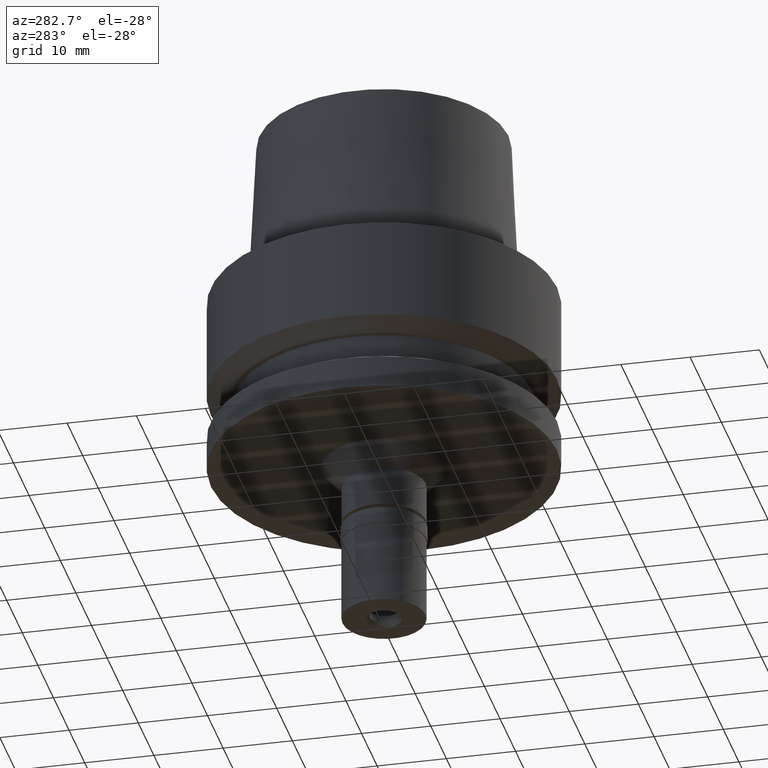
[diagram: clean part render]
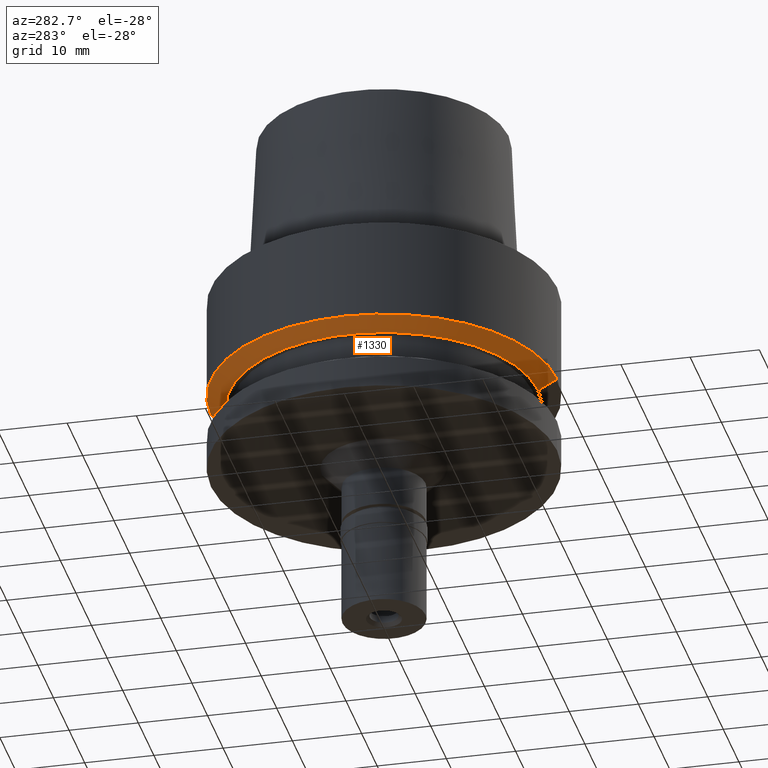
[diagram: same view with one face highlighted and labeled with its STEP entity id]
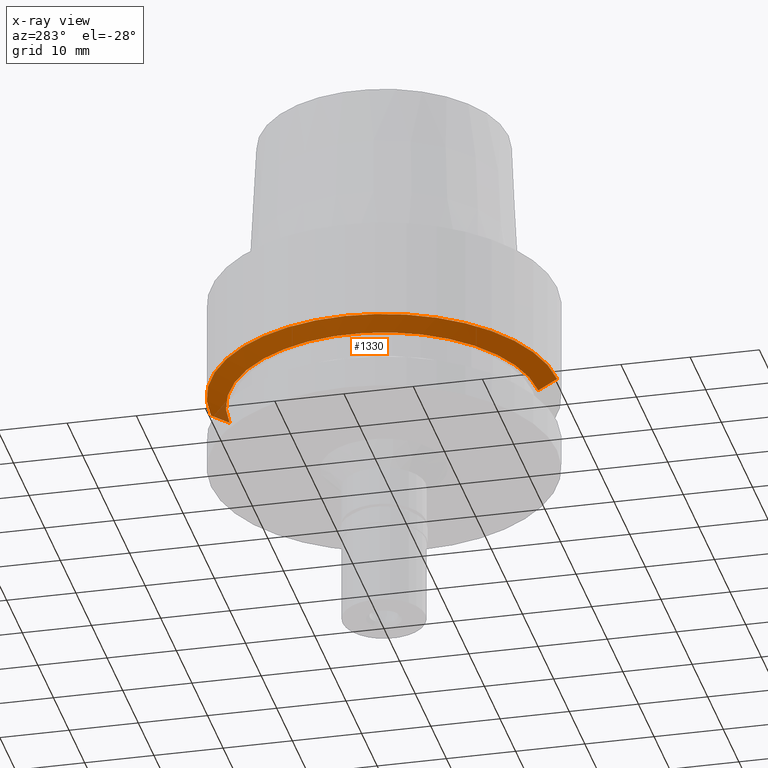
[diagram: x-ray of the same camera — body ghosted, the highlighted face saturated]
A machine part, auxiliary view. The second image highlights one B-rep face of the part: STEP entity #1330.
The next image is the same camera in x-ray: the body ghosted, the highlighted face saturated — about 2% of this face is hidden behind the body in this view.
In plain terms, the highlighted conical surface has half-angle 60.97 deg.
Its self-contained STEP definition (entity closure, byte-faithful):
#42 = VERTEX_POINT ( 'NONE', #1782 ) ;
#114 = CIRCLE ( 'NONE', #157, 25.00000000000000000 ) ;
#138 = EDGE_LOOP ( 'NONE', ( #1587, #1038, #2652, #378 ) ) ;
#139 = VERTEX_POINT ( 'NONE', #648 ) ;
#157 = AXIS2_PLACEMENT_3D ( 'NONE', #964, #338, #795 ) ;
#186 = LINE ( 'NONE', #1436, #584 ) ;
#338 = DIRECTION ( 'NONE',  ( 0.0000000000000000000, 0.0000000000000000000, 1.000000000000000000 ) ) ;
#359 = CARTESIAN_POINT ( 'NONE',  ( 0.0000000000000000000, 25.00000000000000000, -14.61835441913999922 ) ) ;
#362 = EDGE_CURVE ( 'NONE', #1808, #42, #1991, .T. ) ;
#378 = ORIENTED_EDGE ( 'NONE', *, *, #362, .T. ) ;
#584 = VECTOR ( 'NONE', #1905, 1000.000000000000114 ) ;
#648 = CARTESIAN_POINT ( 'NONE',  ( 0.0000000000000000000, -22.28529260494000042, -16.12500000000000000 ) ) ;
#686 = CARTESIAN_POINT ( 'NONE',  ( 0.0000000000000000000, -25.00000000000000000, -14.61835441913999922 ) ) ;
#795 = DIRECTION ( 'NONE',  ( 0.0000000000000000000, 1.000000000000000000, 0.0000000000000000000 ) ) ;
#869 = CARTESIAN_POINT ( 'NONE',  ( 0.0000000000000000000, 0.0000000000000000000, -15.37167720956999872 ) ) ;
#883 = CONICAL_SURFACE ( 'NONE', #1467, 23.64264630247000198, 1.064127244940741290 ) ;
#910 = VERTEX_POINT ( 'NONE', #686 ) ;
#934 = CARTESIAN_POINT ( 'NONE',  ( 0.0000000000000000000, 25.00000000000000000, -14.61835441913999922 ) ) ;
#954 = DIRECTION ( 'NONE',  ( 0.0000000000000000000, 0.0000000000000000000, 1.000000000000000000 ) ) ;
#964 = CARTESIAN_POINT ( 'NONE',  ( 0.0000000000000000000, 0.0000000000000000000, -14.61835441913999922 ) ) ;
#1038 = ORIENTED_EDGE ( 'NONE', *, *, #1783, .F. ) ;
#1130 = DIRECTION ( 'NONE',  ( 0.0000000000000000000, -0.8743657415364817220, -0.4852675035764898448 ) ) ;
#1249 = EDGE_CURVE ( 'NONE', #1808, #910, #114, .T. ) ;
#1330 = ADVANCED_FACE ( 'NONE', ( #1487 ), #883, .T. ) ;
#1436 = CARTESIAN_POINT ( 'NONE',  ( 0.0000000000000000000, -25.00000000000000000, -14.61835441913999922 ) ) ;
#1467 = AXIS2_PLACEMENT_3D ( 'NONE', #869, #954, #2376 ) ;
#1487 = FACE_OUTER_BOUND ( 'NONE', #138, .T. ) ;
#1587 = ORIENTED_EDGE ( 'NONE', *, *, #1902, .T. ) ;
#1782 = CARTESIAN_POINT ( 'NONE',  ( 0.0000000000000000000, 22.28529260494000042, -16.12500000000000000 ) ) ;
#1783 = EDGE_CURVE ( 'NONE', #910, #139, #186, .T. ) ;
#1808 = VERTEX_POINT ( 'NONE', #359 ) ;
#1887 = AXIS2_PLACEMENT_3D ( 'NONE', #2095, #2672, #1928 ) ;
#1902 = EDGE_CURVE ( 'NONE', #42, #139, #2583, .T. ) ;
#1905 = DIRECTION ( 'NONE',  ( 0.0000000000000000000, 0.8743657415364817220, -0.4852675035764898448 ) ) ;
#1928 = DIRECTION ( 'NONE',  ( 0.0000000000000000000, 1.000000000000000000, 0.0000000000000000000 ) ) ;
#1991 = LINE ( 'NONE', #934, #2018 ) ;
#2018 = VECTOR ( 'NONE', #1130, 1000.000000000000114 ) ;
#2095 = CARTESIAN_POINT ( 'NONE',  ( 0.0000000000000000000, 0.0000000000000000000, -16.12500000000000000 ) ) ;
#2376 = DIRECTION ( 'NONE',  ( 0.0000000000000000000, 1.000000000000000000, 0.0000000000000000000 ) ) ;
#2583 = CIRCLE ( 'NONE', #1887, 22.28529260494000042 ) ;
#2652 = ORIENTED_EDGE ( 'NONE', *, *, #1249, .F. ) ;
#2672 = DIRECTION ( 'NONE',  ( 0.0000000000000000000, 0.0000000000000000000, 1.000000000000000000 ) ) ;